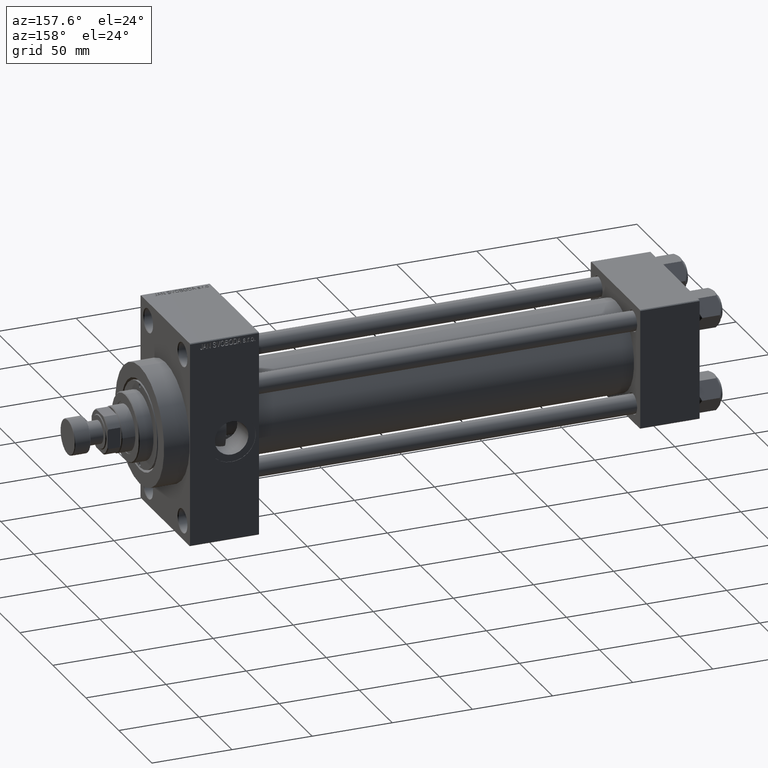
[diagram: clean part render]
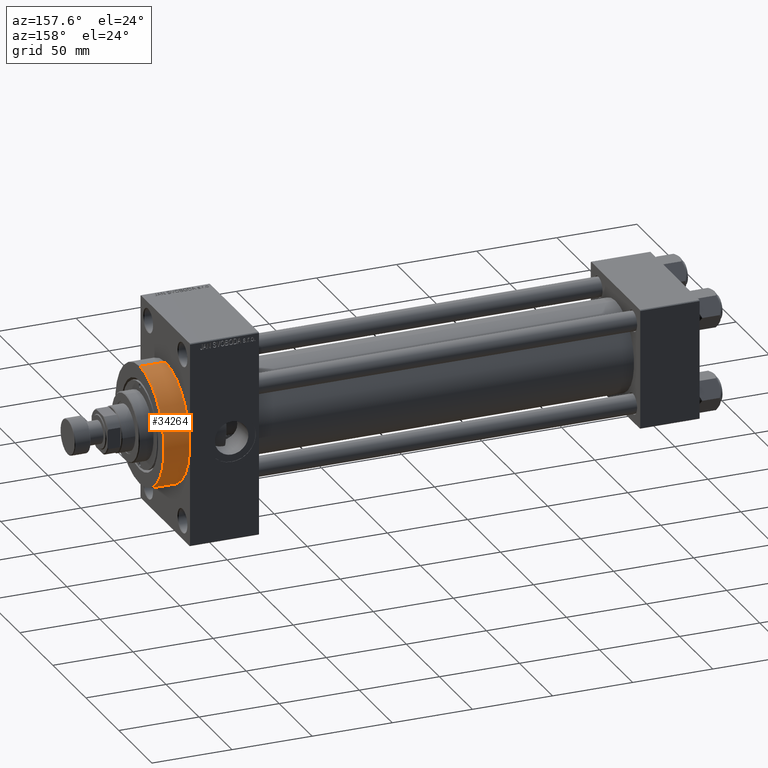
[diagram: same view with one face highlighted and labeled with its STEP entity id]
A machine part, auxiliary view. The second image highlights one B-rep face of the part: STEP entity #34264.
In plain terms, the highlighted cylindrical surface (partial cylindrical patch) has radius 37 mm, axis along (-1, -0, -0).
Its self-contained STEP definition (entity closure, byte-faithful):
#386 = DIRECTION ( 'NONE',  ( -1.000000000000000000, -0.000000000000000000, -0.000000000000000000 ) ) ;
#487 = CARTESIAN_POINT ( 'NONE',  ( 317.9999999999999432, 4.531193156845206793E-15, -37.00000000000000000 ) ) ;
#897 = CIRCLE ( 'NONE', #17109, 37.00000000000000000 ) ;
#2607 = ORIENTED_EDGE ( 'NONE', *, *, #41820, .T. ) ;
#2993 = ORIENTED_EDGE ( 'NONE', *, *, #10719, .F. ) ;
#3362 = CIRCLE ( 'NONE', #16516, 37.00000000000000000 ) ;
#3364 = DIRECTION ( 'NONE',  ( 0.000000000000000000, 0.000000000000000000, -1.000000000000000000 ) ) ;
#4606 = EDGE_LOOP ( 'NONE', ( #2993, #4862, #2607, #41958 ) ) ;
#4862 = ORIENTED_EDGE ( 'NONE', *, *, #10996, .T. ) ;
#7025 = LINE ( 'NONE', #29531, #10222 ) ;
#7893 = CARTESIAN_POINT ( 'NONE',  ( 333.9999999999999432, 4.531193156845206793E-15, -37.00000000000000000 ) ) ;
#8401 = CARTESIAN_POINT ( 'NONE',  ( 317.9999999999999432, 0.000000000000000000, 0.000000000000000000 ) ) ;
#9837 = VERTEX_POINT ( 'NONE', #22448 ) ;
#10222 = VECTOR ( 'NONE', #30009, 1000.000000000000000 ) ;
#10719 = EDGE_CURVE ( 'NONE', #23240, #9837, #3362, .T. ) ;
#10996 = EDGE_CURVE ( 'NONE', #23240, #12188, #22649, .T. ) ;
#12188 = VERTEX_POINT ( 'NONE', #487 ) ;
#12658 = VECTOR ( 'NONE', #386, 1000.000000000000000 ) ;
#15659 = DIRECTION ( 'NONE',  ( 0.000000000000000000, 0.000000000000000000, -1.000000000000000000 ) ) ;
#16516 = AXIS2_PLACEMENT_3D ( 'NONE', #21744, #36520, #3364 ) ;
#17024 = VERTEX_POINT ( 'NONE', #43529 ) ;
#17109 = AXIS2_PLACEMENT_3D ( 'NONE', #8401, #19524, #15659 ) ;
#18796 = FACE_OUTER_BOUND ( 'NONE', #4606, .T. ) ;
#19524 = DIRECTION ( 'NONE',  ( 1.000000000000000000, 0.000000000000000000, 0.000000000000000000 ) ) ;
#21744 = CARTESIAN_POINT ( 'NONE',  ( 333.9999999999999432, 0.000000000000000000, 0.000000000000000000 ) ) ;
#21960 = CYLINDRICAL_SURFACE ( 'NONE', #30132, 37.00000000000000000 ) ;
#22448 = CARTESIAN_POINT ( 'NONE',  ( 333.9999999999999432, 0.000000000000000000, 37.00000000000000000 ) ) ;
#22649 = LINE ( 'NONE', #7893, #12658 ) ;
#23240 = VERTEX_POINT ( 'NONE', #35802 ) ;
#29531 = CARTESIAN_POINT ( 'NONE',  ( 333.9999999999999432, 0.000000000000000000, 37.00000000000000000 ) ) ;
#30009 = DIRECTION ( 'NONE',  ( -1.000000000000000000, -0.000000000000000000, -0.000000000000000000 ) ) ;
#30132 = AXIS2_PLACEMENT_3D ( 'NONE', #33083, #43522, #40847 ) ;
#33083 = CARTESIAN_POINT ( 'NONE',  ( 333.9999999999999432, 0.000000000000000000, 0.000000000000000000 ) ) ;
#34264 = ADVANCED_FACE ( 'NONE', ( #18796 ), #21960, .T. ) ;
#35802 = CARTESIAN_POINT ( 'NONE',  ( 333.9999999999999432, 4.531193156845206793E-15, -37.00000000000000000 ) ) ;
#36520 = DIRECTION ( 'NONE',  ( 1.000000000000000000, 0.000000000000000000, 0.000000000000000000 ) ) ;
#39516 = EDGE_CURVE ( 'NONE', #9837, #17024, #7025, .T. ) ;
#40847 = DIRECTION ( 'NONE',  ( 0.000000000000000000, 0.000000000000000000, 1.000000000000000000 ) ) ;
#41820 = EDGE_CURVE ( 'NONE', #12188, #17024, #897, .T. ) ;
#41958 = ORIENTED_EDGE ( 'NONE', *, *, #39516, .F. ) ;
#43522 = DIRECTION ( 'NONE',  ( -1.000000000000000000, -0.000000000000000000, -0.000000000000000000 ) ) ;
#43529 = CARTESIAN_POINT ( 'NONE',  ( 317.9999999999999432, 0.000000000000000000, 37.00000000000000000 ) ) ;